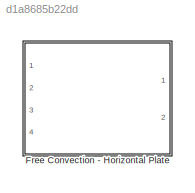
MODEL slx_d1a8685b22dd
KIND library
CONFIG AbsTol = auto
CONFIG FixedStep = auto
CONFIG MaxStep = auto
CONFIG MinStep = auto
CONFIG RelTol = 1e-3
CONFIG SampleTimeConstraint = Unconstrained
CONFIG Solver = ode45
CONFIG SolverMode = Auto
CONFIG SolverName = ode45
CONFIG StartTime = 0.0
CONFIG StopTime = 10.0
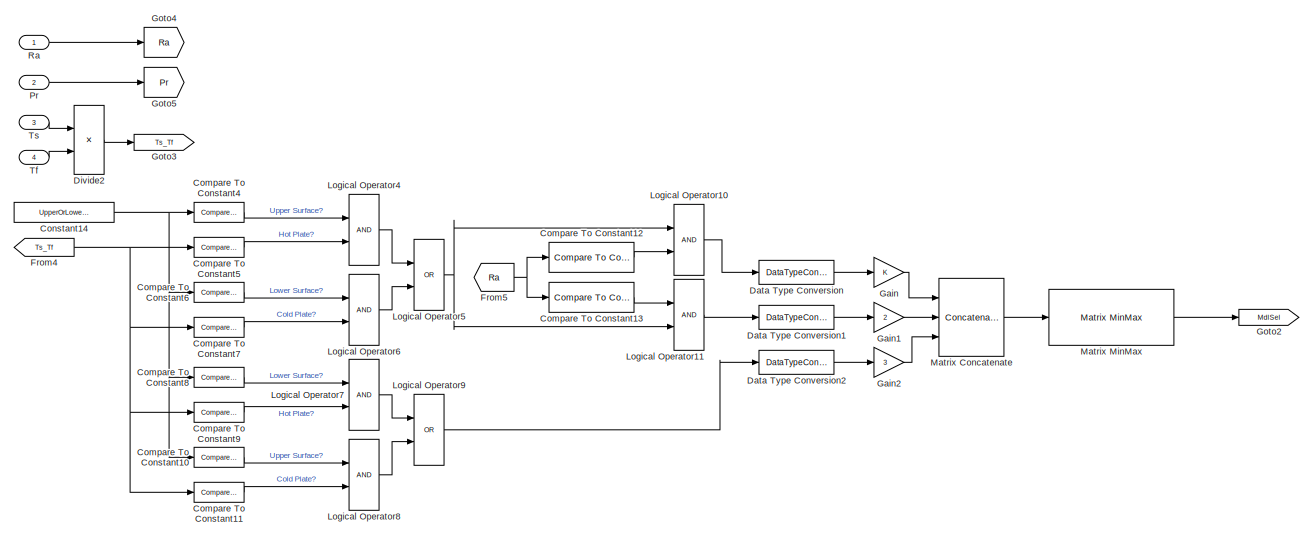
[diagram: Free Convection - Horizontal Plate - part 1/2, full width, top band]
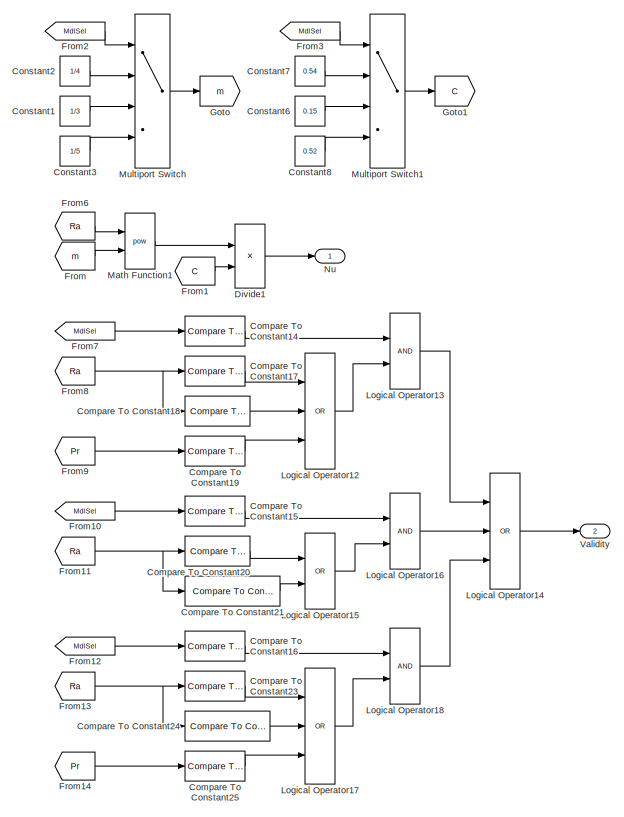
[diagram: Free Convection - Horizontal Plate - part 2/2, bottom left region]
BLOCK [SubSystem] Free Convection - Horizontal Plate
  Ports = [4, 2]
  RequestExecContextInheritance = off
BLOCK [Reference] Free Convection - Horizontal Plate/Compare To Constant10  REF=simulink/Logic and Bit
Operations/Compare
To Constant
  OutDataTypeStr = boolean
  Ports = [1, 1]
  SourceBlock = simulink/Logic and Bit\nOperations/Compare\nTo Constant
  SourceType = Compare To Constant
  ZeroCross = on
  const = 0
  relop = >
BLOCK [Reference] Free Convection - Horizontal Plate/Compare To Constant11  REF=simulink/Logic and Bit
Operations/Compare
To Constant
  OutDataTypeStr = boolean
  Ports = [1, 1]
  SourceBlock = simulink/Logic and Bit\nOperations/Compare\nTo Constant
  SourceType = Compare To Constant
  ZeroCross = on
  const = 1
  relop = <=
BLOCK [Reference] Free Convection - Horizontal Plate/Compare To Constant12  REF=simulink/Logic and Bit
Operations/Compare
To Constant
  OutDataTypeStr = boolean
  Ports = [1, 1]
  SourceBlock = simulink/Logic and Bit\nOperations/Compare\nTo Constant
  SourceType = Compare To Constant
  ZeroCross = on
  const = 10^7
  relop = <=
BLOCK [Reference] Free Convection - Horizontal Plate/Compare To Constant13  REF=simulink/Logic and Bit
Operations/Compare
To Constant
  OutDataTypeStr = boolean
  Ports = [1, 1]
  SourceBlock = simulink/Logic and Bit\nOperations/Compare\nTo Constant
  SourceType = Compare To Constant
  ZeroCross = on
  const = 10^7
  relop = >
BLOCK [Reference] Free Convection - Horizontal Plate/Compare To Constant14  REF=simulink/Logic and Bit
Operations/Compare
To Constant
  OutDataTypeStr = boolean
  Ports = [1, 1]
  SourceBlock = simulink/Logic and Bit\nOperations/Compare\nTo Constant
  SourceType = Compare To Constant
  ZeroCross = on
  const = 1
  relop = ==
BLOCK [Reference] Free Convection - Horizontal Plate/Compare To Constant15  REF=simulink/Logic and Bit
Operations/Compare
To Constant
  OutDataTypeStr = boolean
  Ports = [1, 1]
  SourceBlock = simulink/Logic and Bit\nOperations/Compare\nTo Constant
  SourceType = Compare To Constant
  ZeroCross = on
  const = 2
  relop = ==
BLOCK [Reference] Free Convection - Horizontal Plate/Compare To Constant16  REF=simulink/Logic and Bit
Operations/Compare
To Constant
  OutDataTypeStr = boolean
  Ports = [1, 1]
  SourceBlock = simulink/Logic and Bit\nOperations/Compare\nTo Constant
  SourceType = Compare To Constant
  ZeroCross = on
  const = 3
  relop = ==
BLOCK [Reference] Free Convection - Horizontal Plate/Compare To Constant17  REF=simulink/Logic and Bit
Operations/Compare
To Constant
  OutDataTypeStr = boolean
  Ports = [1, 1]
  SourceBlock = simulink/Logic and Bit\nOperations/Compare\nTo Constant
  SourceType = Compare To Constant
  ZeroCross = on
  const = 10000
  relop = <
BLOCK [Reference] Free Convection - Horizontal Plate/Compare To Constant18  REF=simulink/Logic and Bit
Operations/Compare
To Constant
  OutDataTypeStr = boolean
  Ports = [1, 1]
  SourceBlock = simulink/Logic and Bit\nOperations/Compare\nTo Constant
  SourceType = Compare To Constant
  ZeroCross = on
  const = 10^7
  relop = >
BLOCK [Reference] Free Convection - Horizontal Plate/Compare To Constant19  REF=simulink/Logic and Bit
Operations/Compare
To Constant
  OutDataTypeStr = boolean
  Ports = [1, 1]
  SourceBlock = simulink/Logic and Bit\nOperations/Compare\nTo Constant
  SourceType = Compare To Constant
  ZeroCross = on
  const = 0.7
  relop = <
BLOCK [Reference] Free Convection - Horizontal Plate/Compare To Constant20  REF=simulink/Logic and Bit
Operations/Compare
To Constant
  OutDataTypeStr = boolean
  Ports = [1, 1]
  SourceBlock = simulink/Logic and Bit\nOperations/Compare\nTo Constant
  SourceType = Compare To Constant
  ZeroCross = on
  const = 10^7
  relop = <
BLOCK [Reference] Free Convection - Horizontal Plate/Compare To Constant21  REF=simulink/Logic and Bit
Operations/Compare
To Constant
  OutDataTypeStr = boolean
  Ports = [1, 1]
  SourceBlock = simulink/Logic and Bit\nOperations/Compare\nTo Constant
  SourceType = Compare To Constant
  ZeroCross = on
  const = 10^11
  relop = >
BLOCK [Reference] Free Convection - Horizontal Plate/Compare To Constant23  REF=simulink/Logic and Bit
Operations/Compare
To Constant
  OutDataTypeStr = boolean
  Ports = [1, 1]
  SourceBlock = simulink/Logic and Bit\nOperations/Compare\nTo Constant
  SourceType = Compare To Constant
  ZeroCross = on
  const = 10000
  relop = <
BLOCK [Reference] Free Convection - Horizontal Plate/Compare To Constant24  REF=simulink/Logic and Bit
Operations/Compare
To Constant
  OutDataTypeStr = boolean
  Ports = [1, 1]
  SourceBlock = simulink/Logic and Bit\nOperations/Compare\nTo Constant
  SourceType = Compare To Constant
  ZeroCross = on
  const = 10^9
  relop = >
BLOCK [Reference] Free Convection - Horizontal Plate/Compare To Constant25  REF=simulink/Logic and Bit
Operations/Compare
To Constant
  OutDataTypeStr = boolean
  Ports = [1, 1]
  SourceBlock = simulink/Logic and Bit\nOperations/Compare\nTo Constant
  SourceType = Compare To Constant
  ZeroCross = on
  const = 0.7
  relop = <
BLOCK [Reference] Free Convection - Horizontal Plate/Compare To Constant4  REF=simulink/Logic and Bit
Operations/Compare
To Constant
  OutDataTypeStr = boolean
  Ports = [1, 1]
  SourceBlock = simulink/Logic and Bit\nOperations/Compare\nTo Constant
  SourceType = Compare To Constant
  ZeroCross = on
  const = 0
  relop = >
BLOCK [Reference] Free Convection - Horizontal Plate/Compare To Constant5  REF=simulink/Logic and Bit
Operations/Compare
To Constant
  OutDataTypeStr = boolean
  Ports = [1, 1]
  SourceBlock = simulink/Logic and Bit\nOperations/Compare\nTo Constant
  SourceType = Compare To Constant
  ZeroCross = on
  const = 1
  relop = >
BLOCK [Reference] Free Convection - Horizontal Plate/Compare To Constant6  REF=simulink/Logic and Bit
Operations/Compare
To Constant
  OutDataTypeStr = boolean
  Ports = [1, 1]
  SourceBlock = simulink/Logic and Bit\nOperations/Compare\nTo Constant
  SourceType = Compare To Constant
  ZeroCross = on
  const = 1
  relop = <
BLOCK [Reference] Free Convection - Horizontal Plate/Compare To Constant7  REF=simulink/Logic and Bit
Operations/Compare
To Constant
  OutDataTypeStr = boolean
  Ports = [1, 1]
  SourceBlock = simulink/Logic and Bit\nOperations/Compare\nTo Constant
  SourceType = Compare To Constant
  ZeroCross = on
  const = 1
  relop = <=
BLOCK [Reference] Free Convection - Horizontal Plate/Compare To Constant8  REF=simulink/Logic and Bit
Operations/Compare
To Constant
  OutDataTypeStr = boolean
  Ports = [1, 1]
  SourceBlock = simulink/Logic and Bit\nOperations/Compare\nTo Constant
  SourceType = Compare To Constant
  ZeroCross = on
  const = 1
  relop = <
BLOCK [Reference] Free Convection - Horizontal Plate/Compare To Constant9  REF=simulink/Logic and Bit
Operations/Compare
To Constant
  OutDataTypeStr = boolean
  Ports = [1, 1]
  SourceBlock = simulink/Logic and Bit\nOperations/Compare\nTo Constant
  SourceType = Compare To Constant
  ZeroCross = on
  const = 1
  relop = >
BLOCK [Constant] Free Convection - Horizontal Plate/Constant1
  Value = 1/3
BLOCK [Constant] Free Convection - Horizontal Plate/Constant14
  Value = UpperOrLower_M
BLOCK [Constant] Free Convection - Horizontal Plate/Constant2
  Value = 1/4
BLOCK [Constant] Free Convection - Horizontal Plate/Constant3
  Value = 1/5
BLOCK [Constant] Free Convection - Horizontal Plate/Constant6
  Value = 0.15
BLOCK [Constant] Free Convection - Horizontal Plate/Constant7
  Value = 0.54
BLOCK [Constant] Free Convection - Horizontal Plate/Constant8
  Value = 0.52
BLOCK [DataTypeConversion] Free Convection - Horizontal Plate/Data Type Conversion
  OutDataTypeStr = double
  RndMeth = Floor
  SaturateOnIntegerOverflow = off
BLOCK [DataTypeConversion] Free Convection - Horizontal Plate/Data Type Conversion1
  OutDataTypeStr = double
  RndMeth = Floor
  SaturateOnIntegerOverflow = off
BLOCK [DataTypeConversion] Free Convection - Horizontal Plate/Data Type Conversion2
  OutDataTypeStr = double
  RndMeth = Floor
  SaturateOnIntegerOverflow = off
BLOCK [Product] Free Convection - Horizontal Plate/Divide1
  InputSameDT = off
  Inputs = */
  OutDataTypeStr = Inherit: Inherit via internal rule
  Ports = [2, 1]
  RndMeth = Floor
  SaturateOnIntegerOverflow = off
BLOCK [Product] Free Convection - Horizontal Plate/Divide2
  InputSameDT = off
  Inputs = */
  OutDataTypeStr = Inherit: Inherit via internal rule
  Ports = [2, 1]
  RndMeth = Floor
  SaturateOnIntegerOverflow = off
BLOCK [From] Free Convection - Horizontal Plate/From
  GotoTag = m
BLOCK [From] Free Convection - Horizontal Plate/From1
  GotoTag = C
BLOCK [From] Free Convection - Horizontal Plate/From10
  GotoTag = MdlSel
BLOCK [From] Free Convection - Horizontal Plate/From11
  GotoTag = Ra
BLOCK [From] Free Convection - Horizontal Plate/From12
  GotoTag = MdlSel
BLOCK [From] Free Convection - Horizontal Plate/From13
  GotoTag = Ra
BLOCK [From] Free Convection - Horizontal Plate/From14
  GotoTag = Pr
BLOCK [From] Free Convection - Horizontal Plate/From2
  GotoTag = MdlSel
BLOCK [From] Free Convection - Horizontal Plate/From3
  GotoTag = MdlSel
BLOCK [From] Free Convection - Horizontal Plate/From4
  GotoTag = Ts_Tf
BLOCK [From] Free Convection - Horizontal Plate/From5
  GotoTag = Ra
BLOCK [From] Free Convection - Horizontal Plate/From6
  GotoTag = Ra
BLOCK [From] Free Convection - Horizontal Plate/From7
  GotoTag = MdlSel
BLOCK [From] Free Convection - Horizontal Plate/From8
  GotoTag = Ra
BLOCK [From] Free Convection - Horizontal Plate/From9
  GotoTag = Pr
BLOCK [Gain] Free Convection - Horizontal Plate/Gain
  OutDataTypeStr = Inherit: Inherit via internal rule
  ParamDataTypeStr = Inherit: Inherit via internal rule
  SaturateOnIntegerOverflow = off
BLOCK [Gain] Free Convection - Horizontal Plate/Gain1
  Gain = 2
  OutDataTypeStr = Inherit: Inherit via internal rule
  ParamDataTypeStr = Inherit: Inherit via internal rule
  SaturateOnIntegerOverflow = off
BLOCK [Gain] Free Convection - Horizontal Plate/Gain2
  Gain = 3
  OutDataTypeStr = Inherit: Inherit via internal rule
  ParamDataTypeStr = Inherit: Inherit via internal rule
  SaturateOnIntegerOverflow = off
BLOCK [Goto] Free Convection - Horizontal Plate/Goto
  GotoTag = m
BLOCK [Goto] Free Convection - Horizontal Plate/Goto1
  GotoTag = C
BLOCK [Goto] Free Convection - Horizontal Plate/Goto2
  GotoTag = MdlSel
BLOCK [Goto] Free Convection - Horizontal Plate/Goto3
  GotoTag = Ts_Tf
BLOCK [Goto] Free Convection - Horizontal Plate/Goto4
  GotoTag = Ra
BLOCK [Goto] Free Convection - Horizontal Plate/Goto5
  GotoTag = Pr
BLOCK [Logic] Free Convection - Horizontal Plate/Logical Operator10
  AllPortsSameDT = off
  OutDataTypeStr = boolean
  Ports = [2, 1]
BLOCK [Logic] Free Convection - Horizontal Plate/Logical Operator11
  AllPortsSameDT = off
  OutDataTypeStr = boolean
  Ports = [2, 1]
BLOCK [Logic] Free Convection - Horizontal Plate/Logical Operator12
  AllPortsSameDT = off
  Inputs = 3
  Operator = OR
  OutDataTypeStr = boolean
  Ports = [3, 1]
BLOCK [Logic] Free Convection - Horizontal Plate/Logical Operator13
  AllPortsSameDT = off
  OutDataTypeStr = boolean
  Ports = [2, 1]
BLOCK [Logic] Free Convection - Horizontal Plate/Logical Operator14
  AllPortsSameDT = off
  Inputs = 3
  Operator = OR
  OutDataTypeStr = boolean
  Ports = [3, 1]
BLOCK [Logic] Free Convection - Horizontal Plate/Logical Operator15
  AllPortsSameDT = off
  Operator = OR
  OutDataTypeStr = boolean
  Ports = [2, 1]
BLOCK [Logic] Free Convection - Horizontal Plate/Logical Operator16
  AllPortsSameDT = off
  OutDataTypeStr = boolean
  Ports = [2, 1]
BLOCK [Logic] Free Convection - Horizontal Plate/Logical Operator17
  AllPortsSameDT = off
  Inputs = 3
  Operator = OR
  OutDataTypeStr = boolean
  Ports = [3, 1]
BLOCK [Logic] Free Convection - Horizontal Plate/Logical Operator18
  AllPortsSameDT = off
  OutDataTypeStr = boolean
  Ports = [2, 1]
BLOCK [Logic] Free Convection - Horizontal Plate/Logical Operator4
  AllPortsSameDT = off
  OutDataTypeStr = boolean
  Ports = [2, 1]
BLOCK [Logic] Free Convection - Horizontal Plate/Logical Operator5
  AllPortsSameDT = off
  Operator = OR
  OutDataTypeStr = boolean
  Ports = [2, 1]
BLOCK [Logic] Free Convection - Horizontal Plate/Logical Operator6
  AllPortsSameDT = off
  OutDataTypeStr = boolean
  Ports = [2, 1]
BLOCK [Logic] Free Convection - Horizontal Plate/Logical Operator7
  AllPortsSameDT = off
  OutDataTypeStr = boolean
  Ports = [2, 1]
BLOCK [Logic] Free Convection - Horizontal Plate/Logical Operator8
  AllPortsSameDT = off
  OutDataTypeStr = boolean
  Ports = [2, 1]
BLOCK [Logic] Free Convection - Horizontal Plate/Logical Operator9
  AllPortsSameDT = off
  Operator = OR
  OutDataTypeStr = boolean
  Ports = [2, 1]
BLOCK [Math] Free Convection - Horizontal Plate/Math Function1
  Operator = pow
  Ports = [2, 1]
BLOCK [Concatenate] Free Convection - Horizontal Plate/Matrix Concatenate
  ConcatenateDimension = 2
  Mode = Multidimensional array
  NumInputs = 3
  Ports = [3, 1]
BLOCK [Reference] Free Convection - Horizontal Plate/Matrix MinMax  REF=lib_GenTools_MinMax/Matrix MinMax
  BN_M = gcb
  Ports = [1, 1]
  SourceBlock = lib_GenTools_MinMax/Matrix MinMax
  SourceType = TSAT: Matrix MinMax Block
  all_M = off
  cols_M = off
  minmax_M = off
  rows_M = on
BLOCK [MultiPortSwitch] Free Convection - Horizontal Plate/Multiport Switch
  InputSameDT = off
  Ports = [4, 1]
  SaturateOnIntegerOverflow = off
BLOCK [MultiPortSwitch] Free Convection - Horizontal Plate/Multiport Switch1
  InputSameDT = off
  Ports = [4, 1]
  SaturateOnIntegerOverflow = off
BLOCK [Outport] Free Convection - Horizontal Plate/Nu
  IconDisplay = Port number
BLOCK [Inport] Free Convection - Horizontal Plate/Pr
  IconDisplay = Port number
  Port = 2
BLOCK [Inport] Free Convection - Horizontal Plate/Ra
  IconDisplay = Port number
BLOCK [Inport] Free Convection - Horizontal Plate/Tf
  IconDisplay = Port number
  Port = 4
BLOCK [Inport] Free Convection - Horizontal Plate/Ts
  IconDisplay = Port number
  Port = 3
BLOCK [Outport] Free Convection - Horizontal Plate/Validity
  IconDisplay = Port number
  Port = 2
LINE Free Convection - Horizontal Plate/Compare To Constant10:1 -> Free Convection - Horizontal Plate/Logical Operator8:1
LINE Free Convection - Horizontal Plate/Compare To Constant11:1 -> Free Convection - Horizontal Plate/Logical Operator8:2
LINE Free Convection - Horizontal Plate/Compare To Constant12:1 -> Free Convection - Horizontal Plate/Logical Operator10:2
LINE Free Convection - Horizontal Plate/Compare To Constant13:1 -> Free Convection - Horizontal Plate/Logical Operator11:1
LINE Free Convection - Horizontal Plate/Compare To Constant14:1 -> Free Convection - Horizontal Plate/Logical Operator13:1
LINE Free Convection - Horizontal Plate/Compare To Constant15:1 -> Free Convection - Horizontal Plate/Logical Operator16:1
LINE Free Convection - Horizontal Plate/Compare To Constant16:1 -> Free Convection - Horizontal Plate/Logical Operator18:1
LINE Free Convection - Horizontal Plate/Compare To Constant17:1 -> Free Convection - Horizontal Plate/Logical Operator12:1
LINE Free Convection - Horizontal Plate/Compare To Constant18:1 -> Free Convection - Horizontal Plate/Logical Operator12:2
LINE Free Convection - Horizontal Plate/Compare To Constant19:1 -> Free Convection - Horizontal Plate/Logical Operator12:3
LINE Free Convection - Horizontal Plate/Compare To Constant20:1 -> Free Convection - Horizontal Plate/Logical Operator15:1
LINE Free Convection - Horizontal Plate/Compare To Constant21:1 -> Free Convection - Horizontal Plate/Logical Operator15:2
LINE Free Convection - Horizontal Plate/Compare To Constant23:1 -> Free Convection - Horizontal Plate/Logical Operator17:1
LINE Free Convection - Horizontal Plate/Compare To Constant24:1 -> Free Convection - Horizontal Plate/Logical Operator17:2
LINE Free Convection - Horizontal Plate/Compare To Constant25:1 -> Free Convection - Horizontal Plate/Logical Operator17:3
LINE Free Convection - Horizontal Plate/Compare To Constant4:1 -> Free Convection - Horizontal Plate/Logical Operator4:1
LINE Free Convection - Horizontal Plate/Compare To Constant5:1 -> Free Convection - Horizontal Plate/Logical Operator4:2
LINE Free Convection - Horizontal Plate/Compare To Constant6:1 -> Free Convection - Horizontal Plate/Logical Operator6:1
LINE Free Convection - Horizontal Plate/Compare To Constant7:1 -> Free Convection - Horizontal Plate/Logical Operator6:2
LINE Free Convection - Horizontal Plate/Compare To Constant8:1 -> Free Convection - Horizontal Plate/Logical Operator7:1
LINE Free Convection - Horizontal Plate/Compare To Constant9:1 -> Free Convection - Horizontal Plate/Logical Operator7:2
NET Free Convection - Horizontal Plate/Constant14:1 -> Free Convection - Horizontal Plate/Compare To Constant10:1, Free Convection - Horizontal Plate/Compare To Constant4:1, Free Convection - Horizontal Plate/Compare To Constant6:1, Free Convection - Horizontal Plate/Compare To Constant8:1
LINE Free Convection - Horizontal Plate/Constant1:1 -> Free Convection - Horizontal Plate/Multiport Switch:3
LINE Free Convection - Horizontal Plate/Constant2:1 -> Free Convection - Horizontal Plate/Multiport Switch:2
LINE Free Convection - Horizontal Plate/Constant3:1 -> Free Convection - Horizontal Plate/Multiport Switch:4
LINE Free Convection - Horizontal Plate/Constant6:1 -> Free Convection - Horizontal Plate/Multiport Switch1:3
LINE Free Convection - Horizontal Plate/Constant7:1 -> Free Convection - Horizontal Plate/Multiport Switch1:2
LINE Free Convection - Horizontal Plate/Constant8:1 -> Free Convection - Horizontal Plate/Multiport Switch1:4
LINE Free Convection - Horizontal Plate/Data Type Conversion1:1 -> Free Convection - Horizontal Plate/Gain1:1
LINE Free Convection - Horizontal Plate/Data Type Conversion2:1 -> Free Convection - Horizontal Plate/Gain2:1
LINE Free Convection - Horizontal Plate/Data Type Conversion:1 -> Free Convection - Horizontal Plate/Gain:1
LINE Free Convection - Horizontal Plate/Divide1:1 -> Free Convection - Horizontal Plate/Nu:1
LINE Free Convection - Horizontal Plate/Divide2:1 -> Free Convection - Horizontal Plate/Goto3:1
LINE Free Convection - Horizontal Plate/From10:1 -> Free Convection - Horizontal Plate/Compare To Constant15:1
NET Free Convection - Horizontal Plate/From11:1 -> Free Convection - Horizontal Plate/Compare To Constant20:1, Free Convection - Horizontal Plate/Compare To Constant21:1
LINE Free Convection - Horizontal Plate/From12:1 -> Free Convection - Horizontal Plate/Compare To Constant16:1
NET Free Convection - Horizontal Plate/From13:1 -> Free Convection - Horizontal Plate/Compare To Constant23:1, Free Convection - Horizontal Plate/Compare To Constant24:1
LINE Free Convection - Horizontal Plate/From14:1 -> Free Convection - Horizontal Plate/Compare To Constant25:1
LINE Free Convection - Horizontal Plate/From1:1 -> Free Convection - Horizontal Plate/Divide1:2
LINE Free Convection - Horizontal Plate/From2:1 -> Free Convection - Horizontal Plate/Multiport Switch:1
LINE Free Convection - Horizontal Plate/From3:1 -> Free Convection - Horizontal Plate/Multiport Switch1:1
NET Free Convection - Horizontal Plate/From4:1 -> Free Convection - Horizontal Plate/Compare To Constant11:1, Free Convection - Horizontal Plate/Compare To Constant5:1, Free Convection - Horizontal Plate/Compare To Constant7:1, Free Convection - Horizontal Plate/Compare To Constant9:1
NET Free Convection - Horizontal Plate/From5:1 -> Free Convection - Horizontal Plate/Compare To Constant12:1, Free Convection - Horizontal Plate/Compare To Constant13:1
LINE Free Convection - Horizontal Plate/From6:1 -> Free Convection - Horizontal Plate/Math Function1:1
LINE Free Convection - Horizontal Plate/From7:1 -> Free Convection - Horizontal Plate/Compare To Constant14:1
NET Free Convection - Horizontal Plate/From8:1 -> Free Convection - Horizontal Plate/Compare To Constant17:1, Free Convection - Horizontal Plate/Compare To Constant18:1
LINE Free Convection - Horizontal Plate/From9:1 -> Free Convection - Horizontal Plate/Compare To Constant19:1
LINE Free Convection - Horizontal Plate/From:1 -> Free Convection - Horizontal Plate/Math Function1:2
LINE Free Convection - Horizontal Plate/Gain1:1 -> Free Convection - Horizontal Plate/Matrix Concatenate:2
LINE Free Convection - Horizontal Plate/Gain2:1 -> Free Convection - Horizontal Plate/Matrix Concatenate:3
LINE Free Convection - Horizontal Plate/Gain:1 -> Free Convection - Horizontal Plate/Matrix Concatenate:1
LINE Free Convection - Horizontal Plate/Logical Operator10:1 -> Free Convection - Horizontal Plate/Data Type Conversion:1
LINE Free Convection - Horizontal Plate/Logical Operator11:1 -> Free Convection - Horizontal Plate/Data Type Conversion1:1
LINE Free Convection - Horizontal Plate/Logical Operator12:1 -> Free Convection - Horizontal Plate/Logical Operator13:2
LINE Free Convection - Horizontal Plate/Logical Operator13:1 -> Free Convection - Horizontal Plate/Logical Operator14:1
LINE Free Convection - Horizontal Plate/Logical Operator14:1 -> Free Convection - Horizontal Plate/Validity:1
LINE Free Convection - Horizontal Plate/Logical Operator15:1 -> Free Convection - Horizontal Plate/Logical Operator16:2
LINE Free Convection - Horizontal Plate/Logical Operator16:1 -> Free Convection - Horizontal Plate/Logical Operator14:2
LINE Free Convection - Horizontal Plate/Logical Operator17:1 -> Free Convection - Horizontal Plate/Logical Operator18:2
LINE Free Convection - Horizontal Plate/Logical Operator18:1 -> Free Convection - Horizontal Plate/Logical Operator14:3
LINE Free Convection - Horizontal Plate/Logical Operator4:1 -> Free Convection - Horizontal Plate/Logical Operator5:1
NET Free Convection - Horizontal Plate/Logical Operator5:1 -> Free Convection - Horizontal Plate/Logical Operator10:1, Free Convection - Horizontal Plate/Logical Operator11:2
LINE Free Convection - Horizontal Plate/Logical Operator6:1 -> Free Convection - Horizontal Plate/Logical Operator5:2
LINE Free Convection - Horizontal Plate/Logical Operator7:1 -> Free Convection - Horizontal Plate/Logical Operator9:1
LINE Free Convection - Horizontal Plate/Logical Operator8:1 -> Free Convection - Horizontal Plate/Logical Operator9:2
LINE Free Convection - Horizontal Plate/Logical Operator9:1 -> Free Convection - Horizontal Plate/Data Type Conversion2:1
LINE Free Convection - Horizontal Plate/Math Function1:1 -> Free Convection - Horizontal Plate/Divide1:1
LINE Free Convection - Horizontal Plate/Matrix Concatenate:1 -> Free Convection - Horizontal Plate/Matrix MinMax:1
LINE Free Convection - Horizontal Plate/Matrix MinMax:1 -> Free Convection - Horizontal Plate/Goto2:1
LINE Free Convection - Horizontal Plate/Multiport Switch1:1 -> Free Convection - Horizontal Plate/Goto1:1
LINE Free Convection - Horizontal Plate/Multiport Switch:1 -> Free Convection - Horizontal Plate/Goto:1
LINE Free Convection - Horizontal Plate/Pr:1 -> Free Convection - Horizontal Plate/Goto5:1
LINE Free Convection - Horizontal Plate/Ra:1 -> Free Convection - Horizontal Plate/Goto4:1
LINE Free Convection - Horizontal Plate/Tf:1 -> Free Convection - Horizontal Plate/Divide2:2
LINE Free Convection - Horizontal Plate/Ts:1 -> Free Convection - Horizontal Plate/Divide2:1
note: NET lines group one-source signal fan-out (src -> all destinations, sorted); 1:1 wires keep LINE
